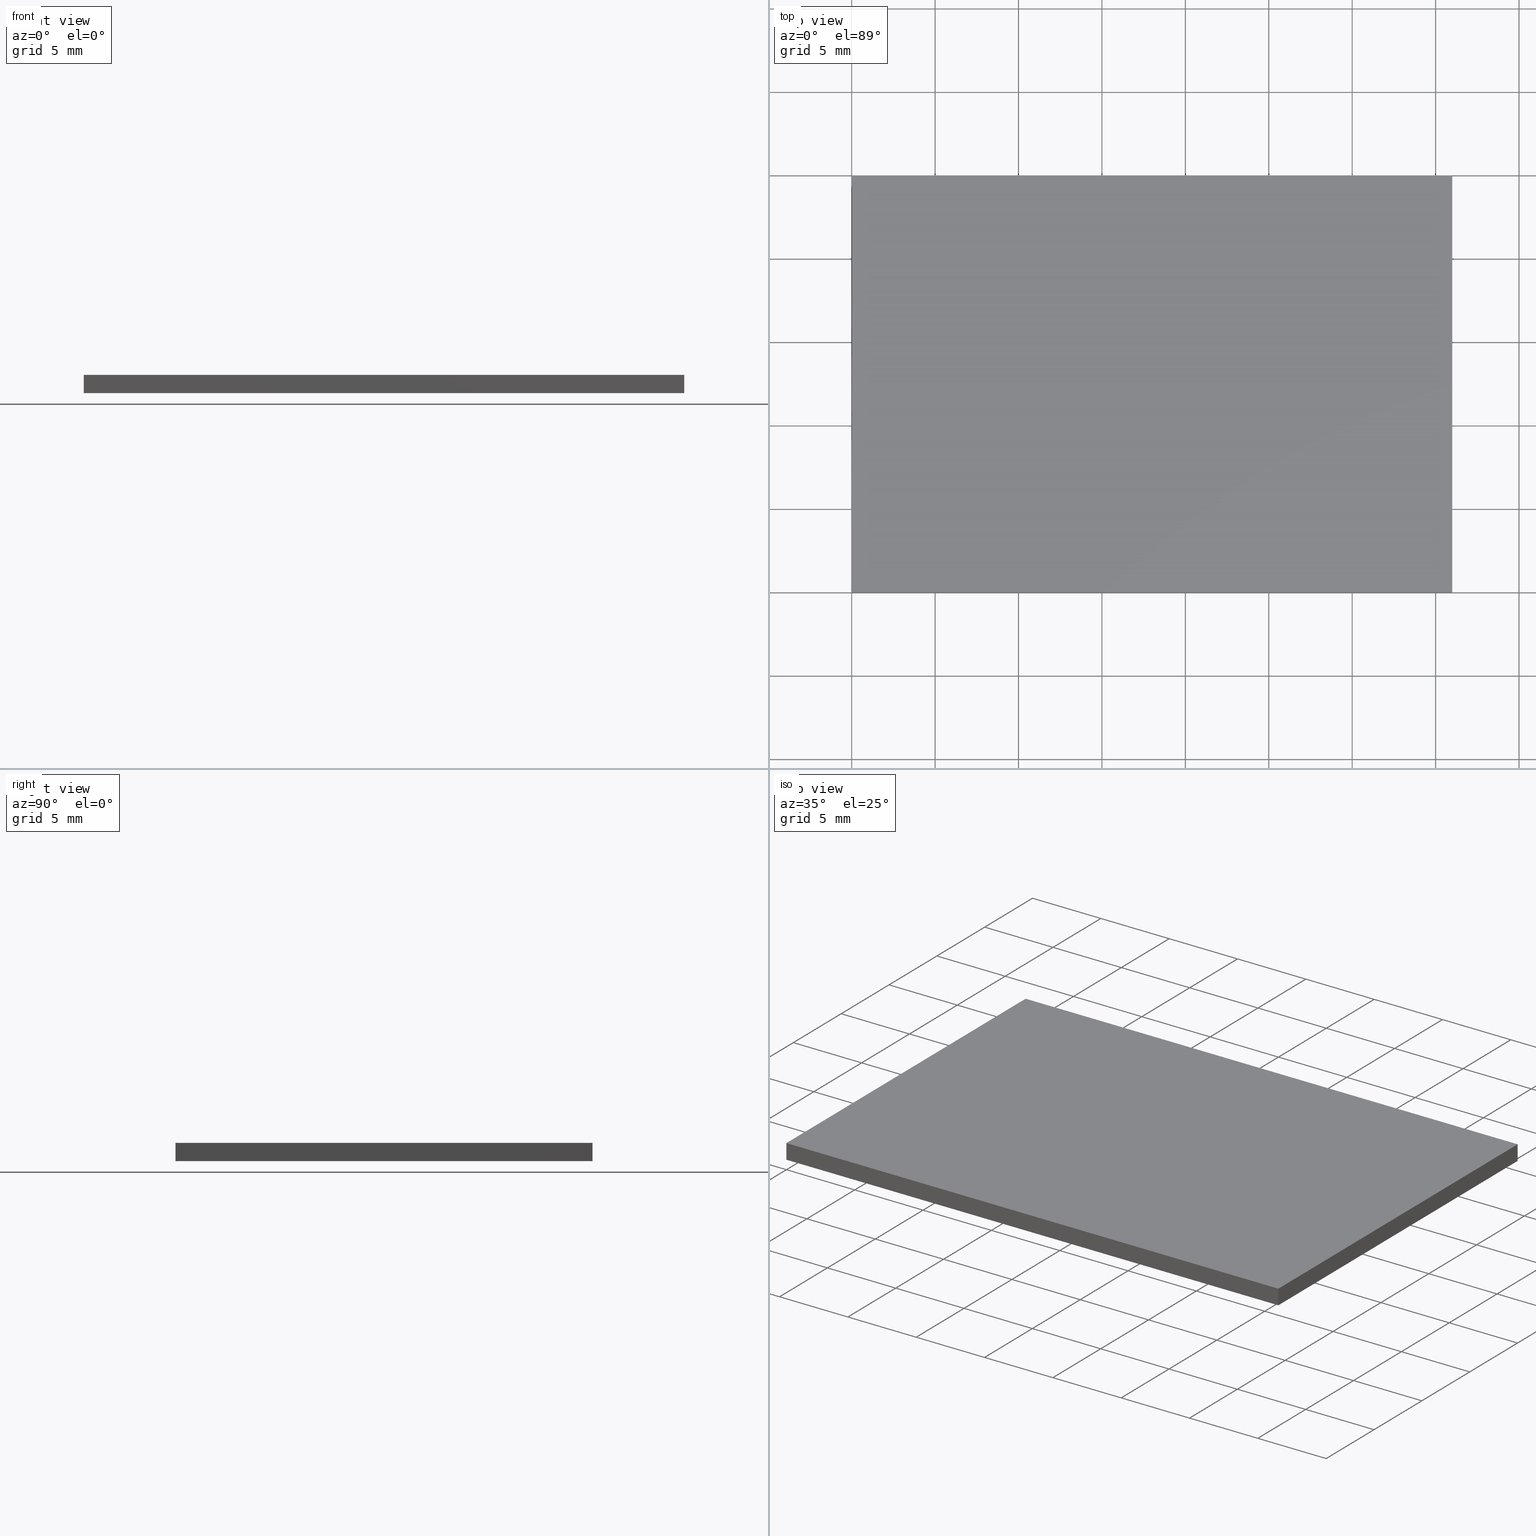
[diagram: canonical four-view strip — front | top / right | iso, engineering-drawing reading convention]
A machine part, canonical four-view strip (front | top / right | iso — engineering-drawing reading convention). The complete STEP part file that produces these views, byte-faithful:
ISO-10303-21;
HEADER;
FILE_DESCRIPTION (( 'STEP AP214' ),
    '1' );
FILE_NAME ('GDMLPH-560-25x36.STEP',
    '2024-08-13T06:04:17',
    ( 'Windows User' ),
    ( 'P R C' ),
    'SwSTEP 2.0',
    'SolidWorks 2022',
    '' );
FILE_SCHEMA (( 'AUTOMOTIVE_DESIGN' ));
ENDSEC;

DATA;
#1 = CARTESIAN_POINT ( 'NONE',  ( 0.000000000000000000, 0.000000000000000000, 1.100000000000000089 ) ) ;
#2 = ORIENTED_EDGE ( 'NONE', *, *, #42, .F. ) ;
#3 = ORIENTED_EDGE ( 'NONE', *, *, #64, .T. ) ;
#4 = ORIENTED_EDGE ( 'NONE', *, *, #115, .F. ) ;
#5 = EDGE_CURVE ( 'NONE', #15, #185, #174, .T. ) ;
#6 = ORIENTED_EDGE ( 'NONE', *, *, #56, .F. ) ;
#7 = CARTESIAN_POINT ( 'NONE',  ( 0.000000000000000000, 0.000000000000000000, 1.100000000000000089 ) ) ;
#8 = AXIS2_PLACEMENT_3D ( 'NONE', #130, #197, #164 ) ;
#9 = DIRECTION ( 'NONE',  ( -0.000000000000000000, -0.000000000000000000, -1.000000000000000000 ) ) ;
#10 = DIRECTION ( 'NONE',  ( -0.000000000000000000, -0.000000000000000000, -1.000000000000000000 ) ) ;
#11 = CARTESIAN_POINT ( 'NONE',  ( 0.000000000000000000, 25.00000000000000000, 0.000000000000000000 ) ) ;
#12 = LINE ( 'NONE', #70, #65 ) ;
#13 = VECTOR ( 'NONE', #151, 1000.000000000000000 ) ;
#14 = DIRECTION ( 'NONE',  ( 0.000000000000000000, 1.000000000000000000, 0.000000000000000000 ) ) ;
#15 = VERTEX_POINT ( 'NONE', #73 ) ;
#16 = EDGE_LOOP ( 'NONE', ( #80, #4, #63, #140 ) ) ;
#17 = VECTOR ( 'NONE', #55, 1000.000000000000000 ) ;
#18 = FACE_OUTER_BOUND ( 'NONE', #122, .T. ) ;
#19 = STYLED_ITEM ( 'NONE', ( #180 ), #183 ) ;
#20 = CARTESIAN_POINT ( 'NONE',  ( 36.00000000000000000, 0.000000000000000000, 1.100000000000000089 ) ) ;
#21 = PRODUCT_CONTEXT ( 'NONE', #116, 'mechanical' ) ;
#22 = UNCERTAINTY_MEASURE_WITH_UNIT (LENGTH_MEASURE( 1.000000000000000082E-05 ), #161, 'distance_accuracy_value', 'NONE');
#23 = CARTESIAN_POINT ( 'NONE',  ( 0.000000000000000000, 0.000000000000000000, 1.100000000000000089 ) ) ;
#24 =( LENGTH_UNIT ( ) NAMED_UNIT ( * ) SI_UNIT ( .MILLI., .METRE. ) );
#25 = EDGE_CURVE ( 'NONE', #93, #123, #118, .T. ) ;
#26 = DIRECTION ( 'NONE',  ( 0.000000000000000000, -0.000000000000000000, 1.000000000000000000 ) ) ;
#27 = CARTESIAN_POINT ( 'NONE',  ( 0.000000000000000000, 25.00000000000000000, 1.100000000000000089 ) ) ;
#28 = ADVANCED_FACE ( 'NONE', ( #133 ), #153, .T. ) ;
#29 = ADVANCED_FACE ( 'NONE', ( #103 ), #54, .F. ) ;
#30 = DIRECTION ( 'NONE',  ( 0.000000000000000000, 1.000000000000000000, 0.000000000000000000 ) ) ;
#31 = EDGE_LOOP ( 'NONE', ( #156, #154, #6, #76 ) ) ;
#32 = COLOUR_RGB ( '',1.000000000000000000, 1.000000000000000000, 1.000000000000000000 ) ;
#33 = CARTESIAN_POINT ( 'NONE',  ( 0.000000000000000000, 0.000000000000000000, 0.000000000000000000 ) ) ;
#34 = AXIS2_PLACEMENT_3D ( 'NONE', #57, #198, #169 ) ;
#35 = CARTESIAN_POINT ( 'NONE',  ( 0.000000000000000000, 0.000000000000000000, 0.000000000000000000 ) ) ;
#36 = CARTESIAN_POINT ( 'NONE',  ( 36.00000000000000000, 0.000000000000000000, 0.000000000000000000 ) ) ;
#37 = EDGE_CURVE ( 'NONE', #93, #135, #171, .T. ) ;
#38 = FILL_AREA_STYLE_COLOUR ( '', #32 ) ;
#39 = PLANE ( 'NONE',  #59 ) ;
#40 = SURFACE_STYLE_FILL_AREA ( #192 ) ;
#41 = DIRECTION ( 'NONE',  ( -1.000000000000000000, 0.000000000000000000, -0.000000000000000000 ) ) ;
#42 = EDGE_CURVE ( 'NONE', #157, #79, #167, .T. ) ;
#43 = CARTESIAN_POINT ( 'NONE',  ( 0.000000000000000000, 25.00000000000000000, 1.100000000000000089 ) ) ;
#44 =( GEOMETRIC_REPRESENTATION_CONTEXT ( 3 ) GLOBAL_UNCERTAINTY_ASSIGNED_CONTEXT ( ( #195 ) ) GLOBAL_UNIT_ASSIGNED_CONTEXT ( ( #24, #178, #148 ) ) REPRESENTATION_CONTEXT ( 'NONE', 'WORKASPACE' ) );
#45 = ORIENTED_EDGE ( 'NONE', *, *, #25, .T. ) ;
#46 = ORIENTED_EDGE ( 'NONE', *, *, #100, .F. ) ;
#47 = CARTESIAN_POINT ( 'NONE',  ( 36.00000000000000000, 25.00000000000000000, 1.100000000000000089 ) ) ;
#48 = PRESENTATION_LAYER_ASSIGNMENT (  '', '', ( #19 ) ) ;
#49 = DIRECTION ( 'NONE',  ( 0.000000000000000000, 1.000000000000000000, 0.000000000000000000 ) ) ;
#50 = DIRECTION ( 'NONE',  ( -0.000000000000000000, -0.000000000000000000, -1.000000000000000000 ) ) ;
#51 = AXIS2_PLACEMENT_3D ( 'NONE', #152, #137, #41 ) ;
#52 = SHAPE_DEFINITION_REPRESENTATION ( #108, #183 ) ;
#53 =( GEOMETRIC_REPRESENTATION_CONTEXT ( 3 ) GLOBAL_UNCERTAINTY_ASSIGNED_CONTEXT ( ( #96 ) ) GLOBAL_UNIT_ASSIGNED_CONTEXT ( ( #112, #190, #101 ) ) REPRESENTATION_CONTEXT ( 'NONE', 'WORKASPACE' ) );
#54 = PLANE ( 'NONE',  #51 ) ;
#55 = DIRECTION ( 'NONE',  ( 1.000000000000000000, 0.000000000000000000, 0.000000000000000000 ) ) ;
#56 = EDGE_CURVE ( 'NONE', #79, #93, #120, .T. ) ;
#57 = CARTESIAN_POINT ( 'NONE',  ( 0.000000000000000000, 0.000000000000000000, 0.000000000000000000 ) ) ;
#58 = EDGE_LOOP ( 'NONE', ( #121, #138, #186, #91 ) ) ;
#59 = AXIS2_PLACEMENT_3D ( 'NONE', #127, #49, #26 ) ;
#60 = ORIENTED_EDGE ( 'NONE', *, *, #74, .F. ) ;
#61 = EDGE_LOOP ( 'NONE', ( #172, #60, #78, #173 ) ) ;
#62 = APPLICATION_CONTEXT ( 'automotive_design' ) ;
#63 = ORIENTED_EDGE ( 'NONE', *, *, #168, .F. ) ;
#64 = EDGE_CURVE ( 'NONE', #185, #141, #182, .T. ) ;
#65 = VECTOR ( 'NONE', #10, 1000.000000000000000 ) ;
#66 = FACE_OUTER_BOUND ( 'NONE', #31, .T. ) ;
#67 = CARTESIAN_POINT ( 'NONE',  ( 0.000000000000000000, 25.00000000000000000, 1.100000000000000089 ) ) ;
#68 = DIRECTION ( 'NONE',  ( 0.000000000000000000, -0.000000000000000000, -1.000000000000000000 ) ) ;
#69 = PRODUCT_DEFINITION_CONTEXT ( 'detailed design', #62, 'design' ) ;
#70 = CARTESIAN_POINT ( 'NONE',  ( 0.000000000000000000, 0.000000000000000000, 1.100000000000000089 ) ) ;
#71 = VECTOR ( 'NONE', #95, 1000.000000000000000 ) ;
#72 = DIRECTION ( 'NONE',  ( 1.000000000000000000, 0.000000000000000000, 0.000000000000000000 ) ) ;
#73 = CARTESIAN_POINT ( 'NONE',  ( 0.000000000000000000, 0.000000000000000000, 0.000000000000000000 ) ) ;
#74 = EDGE_CURVE ( 'NONE', #141, #123, #134, .T. ) ;
#75 = DIRECTION ( 'NONE',  ( -0.000000000000000000, -0.000000000000000000, -1.000000000000000000 ) ) ;
#76 = ORIENTED_EDGE ( 'NONE', *, *, #100, .T. ) ;
#77 = VECTOR ( 'NONE', #179, 1000.000000000000000 ) ;
#78 = ORIENTED_EDGE ( 'NONE', *, *, #64, .F. ) ;
#79 = VERTEX_POINT ( 'NONE', #47 ) ;
#80 = ORIENTED_EDGE ( 'NONE', *, *, #5, .T. ) ;
#81 = AXIS2_PLACEMENT_3D ( 'NONE', #131, #194, #72 ) ;
#82 = EDGE_CURVE ( 'NONE', #123, #15, #110, .T. ) ;
#83 = DIRECTION ( 'NONE',  ( -1.000000000000000000, -0.000000000000000000, -0.000000000000000000 ) ) ;
#84 = CARTESIAN_POINT ( 'NONE',  ( 0.000000000000000000, 0.000000000000000000, 1.100000000000000089 ) ) ;
#85 = CARTESIAN_POINT ( 'NONE',  ( 36.00000000000000000, 25.00000000000000000, 0.000000000000000000 ) ) ;
#86 = SURFACE_STYLE_USAGE ( .BOTH. , #97 ) ;
#87 =( NAMED_UNIT ( * ) PLANE_ANGLE_UNIT ( ) SI_UNIT ( $, .RADIAN. ) );
#88 = CARTESIAN_POINT ( 'NONE',  ( 0.000000000000000000, 25.00000000000000000, 1.100000000000000089 ) ) ;
#89 = VECTOR ( 'NONE', #9, 1000.000000000000000 ) ;
#90 = CARTESIAN_POINT ( 'NONE',  ( 36.00000000000000000, 0.000000000000000000, 0.000000000000000000 ) ) ;
#91 = ORIENTED_EDGE ( 'NONE', *, *, #56, .T. ) ;
#92 = ADVANCED_FACE ( 'NONE', ( #18 ), #159, .F. ) ;
#93 = VERTEX_POINT ( 'NONE', #67 ) ;
#94 = VECTOR ( 'NONE', #30, 1000.000000000000000 ) ;
#95 = DIRECTION ( 'NONE',  ( -0.000000000000000000, -1.000000000000000000, -0.000000000000000000 ) ) ;
#96 = UNCERTAINTY_MEASURE_WITH_UNIT (LENGTH_MEASURE( 1.000000000000000082E-05 ), #112, 'distance_accuracy_value', 'NONE');
#97 = SURFACE_SIDE_STYLE ('',( #126 ) ) ;
#98 =( NAMED_UNIT ( * ) SI_UNIT ( $, .STERADIAN. ) SOLID_ANGLE_UNIT ( ) );
#99 = PLANE ( 'NONE',  #144 ) ;
#100 = EDGE_CURVE ( 'NONE', #79, #141, #162, .T. ) ;
#101 =( NAMED_UNIT ( * ) SI_UNIT ( $, .STERADIAN. ) SOLID_ANGLE_UNIT ( ) );
#102 = DIRECTION ( 'NONE',  ( -0.000000000000000000, -1.000000000000000000, -0.000000000000000000 ) ) ;
#103 = FACE_OUTER_BOUND ( 'NONE', #58, .T. ) ;
#104 = ORIENTED_EDGE ( 'NONE', *, *, #115, .T. ) ;
#105 = COLOUR_RGB ( '',1.000000000000000000, 1.000000000000000000, 1.000000000000000000 ) ;
#106 = EDGE_LOOP ( 'NONE', ( #3, #46, #2, #104 ) ) ;
#107 = ADVANCED_FACE ( 'NONE', ( #165 ), #39, .F. ) ;
#108 = PRODUCT_DEFINITION_SHAPE ( 'NONE', 'NONE',  #111 ) ;
#109 = ORIENTED_EDGE ( 'NONE', *, *, #37, .F. ) ;
#110 = LINE ( 'NONE', #35, #71 ) ;
#111 = PRODUCT_DEFINITION ( 'δ֪', '', #158, #69 ) ;
#112 =( LENGTH_UNIT ( ) NAMED_UNIT ( * ) SI_UNIT ( .MILLI., .METRE. ) );
#113 = SURFACE_SIDE_STYLE ('',( #40 ) ) ;
#114 = DIRECTION ( 'NONE',  ( 0.000000000000000000, -1.000000000000000000, 0.000000000000000000 ) ) ;
#115 = EDGE_CURVE ( 'NONE', #157, #185, #117, .T. ) ;
#116 = APPLICATION_CONTEXT ( 'automotive_design' ) ;
#117 = LINE ( 'NONE', #143, #89 ) ;
#118 = LINE ( 'NONE', #43, #142 ) ;
#119 = VECTOR ( 'NONE', #50, 1000.000000000000000 ) ;
#120 = LINE ( 'NONE', #27, #13 ) ;
#121 = ORIENTED_EDGE ( 'NONE', *, *, #37, .T. ) ;
#122 = EDGE_LOOP ( 'NONE', ( #202, #139, #109, #45 ) ) ;
#123 = VERTEX_POINT ( 'NONE', #11 ) ;
#124 = PRODUCT_RELATED_PRODUCT_CATEGORY ( 'part', '', ( #175 ) ) ;
#125 = MECHANICAL_DESIGN_GEOMETRIC_PRESENTATION_REPRESENTATION (  '', ( #155 ), #53 ) ;
#126 = SURFACE_STYLE_FILL_AREA ( #177 ) ;
#127 = CARTESIAN_POINT ( 'NONE',  ( 0.000000000000000000, 0.000000000000000000, 1.100000000000000089 ) ) ;
#128 = APPLICATION_PROTOCOL_DEFINITION ( 'draft international standard', 'automotive_design', 1998, #116 ) ;
#129 = EDGE_CURVE ( 'NONE', #135, #15, #12, .T. ) ;
#130 = CARTESIAN_POINT ( 'NONE',  ( 36.00000000000000000, 0.000000000000000000, 1.100000000000000089 ) ) ;
#131 = CARTESIAN_POINT ( 'NONE',  ( 0.000000000000000000, 0.000000000000000000, 0.000000000000000000 ) ) ;
#132 = APPLICATION_PROTOCOL_DEFINITION ( 'draft international standard', 'automotive_design', 1998, #62 ) ;
#133 = FACE_OUTER_BOUND ( 'NONE', #61, .T. ) ;
#134 = LINE ( 'NONE', #188, #176 ) ;
#135 = VERTEX_POINT ( 'NONE', #23 ) ;
#136 =( GEOMETRIC_REPRESENTATION_CONTEXT ( 3 ) GLOBAL_UNCERTAINTY_ASSIGNED_CONTEXT ( ( #22 ) ) GLOBAL_UNIT_ASSIGNED_CONTEXT ( ( #161, #87, #98 ) ) REPRESENTATION_CONTEXT ( 'NONE', 'WORKASPACE' ) );
#137 = DIRECTION ( 'NONE',  ( 0.000000000000000000, 0.000000000000000000, -1.000000000000000000 ) ) ;
#138 = ORIENTED_EDGE ( 'NONE', *, *, #168, .T. ) ;
#139 = ORIENTED_EDGE ( 'NONE', *, *, #129, .F. ) ;
#140 = ORIENTED_EDGE ( 'NONE', *, *, #129, .T. ) ;
#141 = VERTEX_POINT ( 'NONE', #85 ) ;
#142 = VECTOR ( 'NONE', #75, 1000.000000000000000 ) ;
#143 = CARTESIAN_POINT ( 'NONE',  ( 36.00000000000000000, 0.000000000000000000, 1.100000000000000089 ) ) ;
#144 = AXIS2_PLACEMENT_3D ( 'NONE', #88, #114, #68 ) ;
#145 = PLANE ( 'NONE',  #8 ) ;
#146 = LINE ( 'NONE', #84, #77 ) ;
#147 = FILL_AREA_STYLE_COLOUR ( '', #105 ) ;
#148 =( NAMED_UNIT ( * ) SI_UNIT ( $, .STERADIAN. ) SOLID_ANGLE_UNIT ( ) );
#149 = CLOSED_SHELL ( 'NONE', ( #92, #107, #181, #187, #29, #28 ) ) ;
#150 = SURFACE_STYLE_USAGE ( .BOTH. , #113 ) ;
#151 = DIRECTION ( 'NONE',  ( -1.000000000000000000, -0.000000000000000000, -0.000000000000000000 ) ) ;
#152 = CARTESIAN_POINT ( 'NONE',  ( 0.000000000000000000, 0.000000000000000000, 1.100000000000000089 ) ) ;
#153 = PLANE ( 'NONE',  #34 ) ;
#154 = ORIENTED_EDGE ( 'NONE', *, *, #25, .F. ) ;
#155 = STYLED_ITEM ( 'NONE', ( #193 ), #200 ) ;
#156 = ORIENTED_EDGE ( 'NONE', *, *, #74, .T. ) ;
#157 = VERTEX_POINT ( 'NONE', #20 ) ;
#158 = PRODUCT_DEFINITION_FORMATION_WITH_SPECIFIED_SOURCE ( '�κ�', '', #175, .NOT_KNOWN. ) ;
#159 = PLANE ( 'NONE',  #184 ) ;
#160 = DIRECTION ( 'NONE',  ( 0.000000000000000000, 0.000000000000000000, -1.000000000000000000 ) ) ;
#161 =( LENGTH_UNIT ( ) NAMED_UNIT ( * ) SI_UNIT ( .MILLI., .METRE. ) );
#162 = LINE ( 'NONE', #163, #119 ) ;
#163 = CARTESIAN_POINT ( 'NONE',  ( 36.00000000000000000, 25.00000000000000000, 1.100000000000000089 ) ) ;
#164 = DIRECTION ( 'NONE',  ( 0.000000000000000000, 0.000000000000000000, 1.000000000000000000 ) ) ;
#165 = FACE_OUTER_BOUND ( 'NONE', #16, .T. ) ;
#166 = MECHANICAL_DESIGN_GEOMETRIC_PRESENTATION_REPRESENTATION (  '', ( #19 ), #44 ) ;
#167 = LINE ( 'NONE', #201, #94 ) ;
#168 = EDGE_CURVE ( 'NONE', #135, #157, #146, .T. ) ;
#169 = DIRECTION ( 'NONE',  ( -1.000000000000000000, 0.000000000000000000, -0.000000000000000000 ) ) ;
#170 = VECTOR ( 'NONE', #102, 1000.000000000000000 ) ;
#171 = LINE ( 'NONE', #1, #170 ) ;
#172 = ORIENTED_EDGE ( 'NONE', *, *, #82, .F. ) ;
#173 = ORIENTED_EDGE ( 'NONE', *, *, #5, .F. ) ;
#174 = LINE ( 'NONE', #33, #17 ) ;
#175 = PRODUCT ( 'GDMLPH-560-25x36', 'GDMLPH-560-25x36', '', ( #21 ) ) ;
#176 = VECTOR ( 'NONE', #83, 1000.000000000000000 ) ;
#177 = FILL_AREA_STYLE ('',( #38 ) ) ;
#178 =( NAMED_UNIT ( * ) PLANE_ANGLE_UNIT ( ) SI_UNIT ( $, .RADIAN. ) );
#179 = DIRECTION ( 'NONE',  ( 1.000000000000000000, 0.000000000000000000, 0.000000000000000000 ) ) ;
#180 = PRESENTATION_STYLE_ASSIGNMENT (( #150 ) ) ;
#181 = ADVANCED_FACE ( 'NONE', ( #191 ), #145, .F. ) ;
#182 = LINE ( 'NONE', #90, #196 ) ;
#183 = ADVANCED_BREP_SHAPE_REPRESENTATION ( 'GDMLPH-560-25x36', ( #200, #81 ), #136 ) ;
#184 = AXIS2_PLACEMENT_3D ( 'NONE', #7, #189, #160 ) ;
#185 = VERTEX_POINT ( 'NONE', #36 ) ;
#186 = ORIENTED_EDGE ( 'NONE', *, *, #42, .T. ) ;
#187 = ADVANCED_FACE ( 'NONE', ( #66 ), #99, .F. ) ;
#188 = CARTESIAN_POINT ( 'NONE',  ( 0.000000000000000000, 25.00000000000000000, 0.000000000000000000 ) ) ;
#189 = DIRECTION ( 'NONE',  ( 1.000000000000000000, 0.000000000000000000, 0.000000000000000000 ) ) ;
#190 =( NAMED_UNIT ( * ) PLANE_ANGLE_UNIT ( ) SI_UNIT ( $, .RADIAN. ) );
#191 = FACE_OUTER_BOUND ( 'NONE', #106, .T. ) ;
#192 = FILL_AREA_STYLE ('',( #147 ) ) ;
#193 = PRESENTATION_STYLE_ASSIGNMENT (( #86 ) ) ;
#194 = DIRECTION ( 'NONE',  ( 0.000000000000000000, 0.000000000000000000, 1.000000000000000000 ) ) ;
#195 = UNCERTAINTY_MEASURE_WITH_UNIT (LENGTH_MEASURE( 1.000000000000000082E-05 ), #24, 'distance_accuracy_value', 'NONE');
#196 = VECTOR ( 'NONE', #14, 1000.000000000000000 ) ;
#197 = DIRECTION ( 'NONE',  ( -1.000000000000000000, 0.000000000000000000, 0.000000000000000000 ) ) ;
#198 = DIRECTION ( 'NONE',  ( 0.000000000000000000, 0.000000000000000000, -1.000000000000000000 ) ) ;
#199 = PRESENTATION_LAYER_ASSIGNMENT (  '', '', ( #155 ) ) ;
#200 = MANIFOLD_SOLID_BREP ( '͹̨-����1', #149 ) ;
#201 = CARTESIAN_POINT ( 'NONE',  ( 36.00000000000000000, 0.000000000000000000, 1.100000000000000089 ) ) ;
#202 = ORIENTED_EDGE ( 'NONE', *, *, #82, .T. ) ;
ENDSEC;
END-ISO-10303-21;
